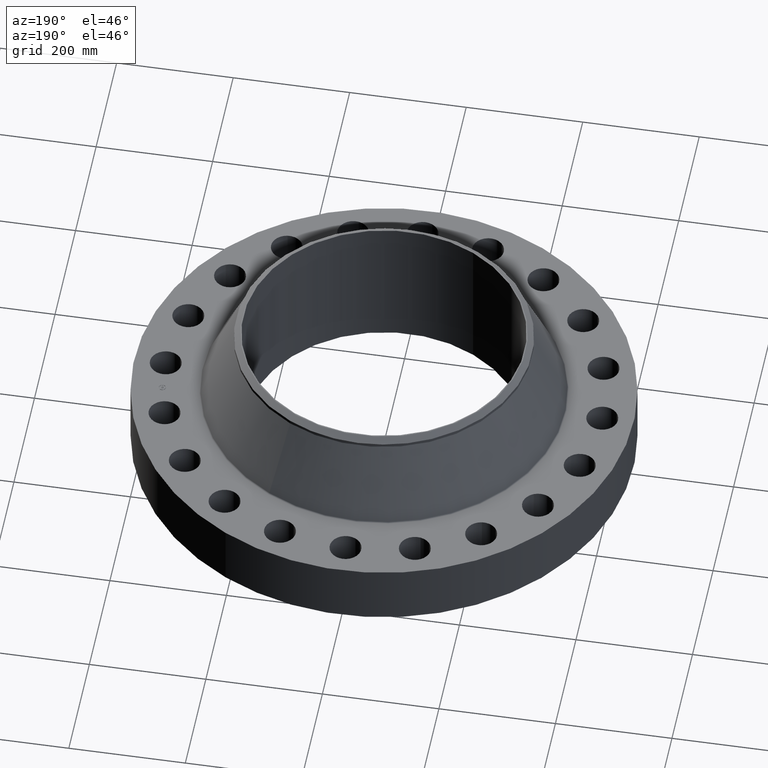
[diagram: clean part render]
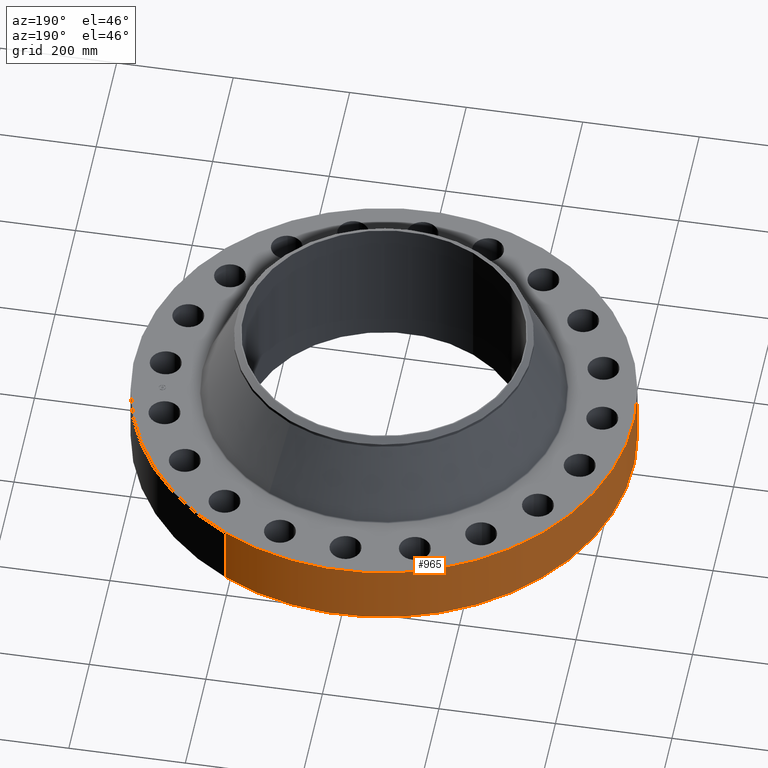
[diagram: same view with one face highlighted and labeled with its STEP entity id]
A machine part, auxiliary view. The second image highlights one B-rep face of the part: STEP entity #965.
In plain terms, the highlighted cylindrical surface (partial cylindrical patch) has radius 428.625 mm, axis along (0, 0, -1).
Its self-contained STEP definition (entity closure, byte-faithful):
#143=AXIS2_PLACEMENT_3D('Circle Axis2P3D',#141,#142,$) ;
#547=AXIS2_PLACEMENT_3D('Circle Axis2P3D',#545,#546,$) ;
#947=AXIS2_PLACEMENT_3D('Cylinder Axis2P3D',#944,#945,#946) ;
#141=CARTESIAN_POINT('Axis2P3D Location',(0.,1.06670927559E-011,0.)) ;
#145=CARTESIAN_POINT('Vertex',(-8.090305964,-14.809205732,1.1189649382E-015)) ;
#147=CARTESIAN_POINT('Vertex',(8.090305964,14.809205732,-2.40006789596E-011)) ;
#540=CARTESIAN_POINT('Vertex',(8.09030596398,14.809205732,4.25000000002)) ;
#542=CARTESIAN_POINT('Vertex',(-8.090305964,-14.809205732,4.25000000002)) ;
#545=CARTESIAN_POINT('Axis2P3D Location',(1.28099106126E-011,-1.69993153412E-011,4.25000000002)) ;
#944=CARTESIAN_POINT('Axis2P3D Location',(0.,0.,4.87500000002)) ;
#949=CARTESIAN_POINT('Line Origine',(-8.090305964,-14.809205732,2.125)) ;
#954=CARTESIAN_POINT('Line Origine',(8.090305964,14.809205732,2.125)) ;
#142=DIRECTION('Axis2P3D Direction',(0.,0.,-0.0393700787402)) ;
#546=DIRECTION('Axis2P3D Direction',(0.,0.,-0.0393700787402)) ;
#945=DIRECTION('Axis2P3D Direction',(0.,0.,-0.0393700787402)) ;
#946=DIRECTION('Axis2P3D XDirection',(-0.0188750212049,-0.0345504945626,0.)) ;
#950=DIRECTION('Vector Direction',(0.,0.,-0.0393700787402)) ;
#955=DIRECTION('Vector Direction',(0.,0.,-0.0393700787402)) ;
#951=VECTOR('Line Direction',#950,0.0393700787402) ;
#956=VECTOR('Line Direction',#955,0.0393700787402) ;
#960=ORIENTED_EDGE('',*,*,#149,.F.) ;
#961=ORIENTED_EDGE('',*,*,#953,.T.) ;
#962=ORIENTED_EDGE('',*,*,#549,.T.) ;
#963=ORIENTED_EDGE('',*,*,#958,.F.) ;
#965=ADVANCED_FACE('PartBody',(#964),#948,.T.) ;
#144=CIRCLE('generated circle',#143,16.8750000001) ;
#548=CIRCLE('generated circle',#547,16.8750000001) ;
#948=CYLINDRICAL_SURFACE('generated cylinder',#947,16.8750000001) ;
#149=EDGE_CURVE('',#146,#148,#144,.T.) ;
#549=EDGE_CURVE('',#543,#541,#548,.T.) ;
#953=EDGE_CURVE('',#146,#543,#952,.F.) ;
#958=EDGE_CURVE('',#148,#541,#957,.F.) ;
#959=EDGE_LOOP('',(#960,#961,#962,#963)) ;
#964=FACE_OUTER_BOUND('',#959,.T.) ;
#952=LINE('Line',#949,#951) ;
#957=LINE('Line',#954,#956) ;
#146=VERTEX_POINT('',#145) ;
#148=VERTEX_POINT('',#147) ;
#541=VERTEX_POINT('',#540) ;
#543=VERTEX_POINT('',#542) ;